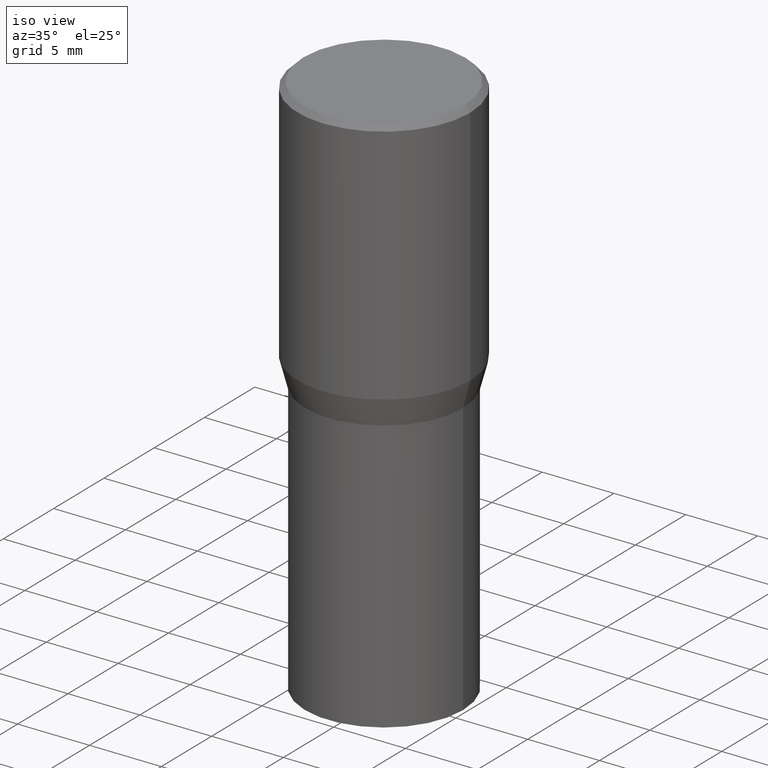
[diagram: clean part render]
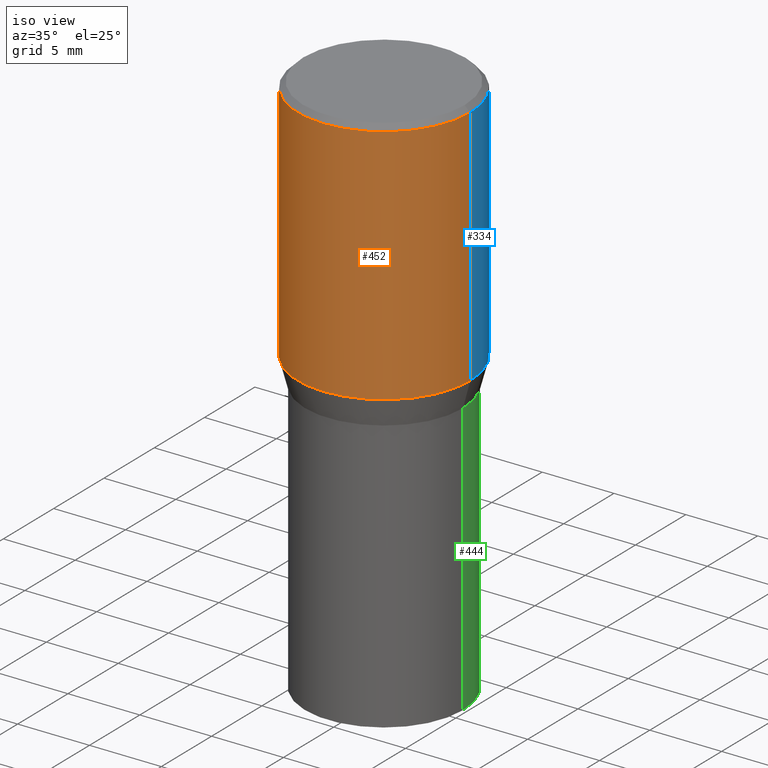
[diagram: same view with three faces highlighted in distinct colors, each labeled with its STEP entity id]
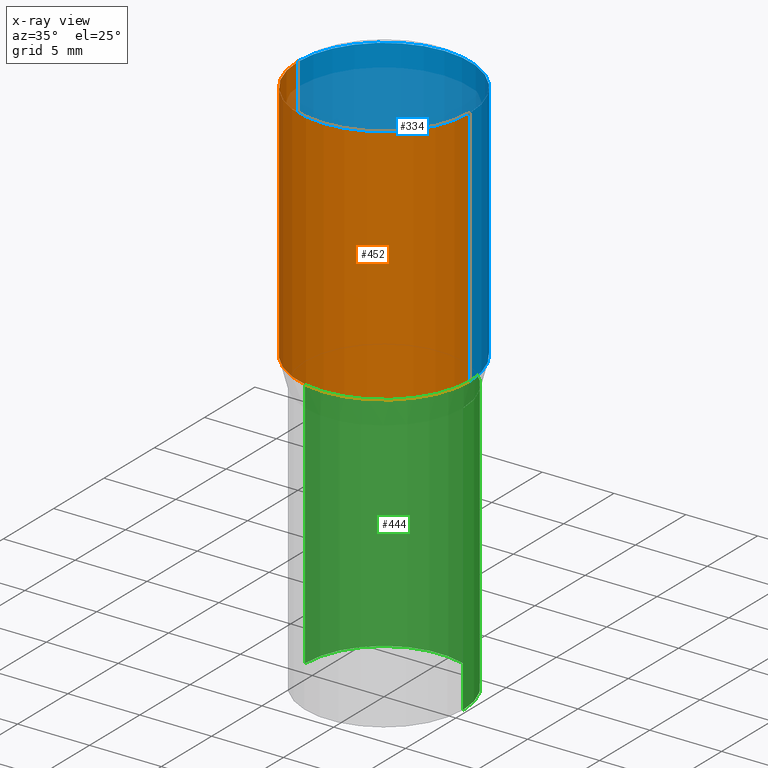
[diagram: x-ray of the same camera — body ghosted, the three highlighted faces saturated]
A machine part, iso view with three faces highlighted in distinct colors.
The next image is the same camera in x-ray (body ghosted, the three faces saturated) — at least one of them is partly hidden behind the body in this view.
Their STEP definitions:

[orange] entity #452 — the highlighted cylindrical surface (partial cylindrical patch) has radius 5.9995 mm, axis along (-0, 0, 1).
#31 = CARTESIAN_POINT ( 'NONE',  ( 1.659654580432621677E-29, -2.369546886817807077E-15, -0.6786652016312719748 ) ) ;
#37 = CARTESIAN_POINT ( 'NONE',  ( 0.2361999999999999933, -1.649375784469496131E-15, 1.151752954443000088E-29 ) ) ;
#40 = LINE ( 'NONE', #37, #412 ) ;
#52 = CARTESIAN_POINT ( 'NONE',  ( -0.2361999999999999933, 1.678301941865356591E-15, -1.161852468318208757E-29 ) ) ;
#78 = DIRECTION ( 'NONE',  ( 1.000000000000000000, -6.982962677686266711E-15, 0.000000000000000000 ) ) ;
#126 = VERTEX_POINT ( 'NONE', #207 ) ;
#128 = EDGE_CURVE ( 'NONE', #126, #438, #345, .T. ) ;
#147 = AXIS2_PLACEMENT_3D ( 'NONE', #31, #462, #78 ) ;
#157 = EDGE_CURVE ( 'NONE', #438, #333, #40, .T. ) ;
#169 = DIRECTION ( 'NONE',  ( -2.445468806185136597E-29, 3.491481338843145583E-15, 1.000000000000000000 ) ) ;
#191 = AXIS2_PLACEMENT_3D ( 'NONE', #368, #194, #330 ) ;
#194 = DIRECTION ( 'NONE',  ( -2.445468806185136597E-29, 3.491481338843145583E-15, 1.000000000000000000 ) ) ;
#207 = CARTESIAN_POINT ( 'NONE',  ( -0.2361999999999999933, -6.912449449524502887E-16, -0.6786652016312719748 ) ) ;
#221 = CIRCLE ( 'NONE', #302, 0.2361999999999999933 ) ;
#226 = CARTESIAN_POINT ( 'NONE',  ( -0.2361999999999999933, 4.673423884151294145E-16, -0.01499999999999999944 ) ) ;
#229 = CYLINDRICAL_SURFACE ( 'NONE', #191, 0.2361999999999999933 ) ;
#254 = EDGE_LOOP ( 'NONE', ( #331, #304, #453, #325 ) ) ;
#294 = VECTOR ( 'NONE', #398, 39.37007874015748143 ) ;
#298 = LINE ( 'NONE', #52, #294 ) ;
#302 = AXIS2_PLACEMENT_3D ( 'NONE', #449, #169, #370 ) ;
#304 = ORIENTED_EDGE ( 'NONE', *, *, #128, .T. ) ;
#325 = ORIENTED_EDGE ( 'NONE', *, *, #463, .F. ) ;
#330 = DIRECTION ( 'NONE',  ( 1.000000000000000000, -6.982962677686266711E-15, 4.876176775795936353E-29 ) ) ;
#331 = ORIENTED_EDGE ( 'NONE', *, *, #384, .F. ) ;
#333 = VERTEX_POINT ( 'NONE', #406 ) ;
#345 = CIRCLE ( 'NONE', #147, 0.2361999999999999933 ) ;
#368 = CARTESIAN_POINT ( 'NONE',  ( 0.000000000000000000, 0.000000000000000000, 0.000000000000000000 ) ) ;
#370 = DIRECTION ( 'NONE',  ( 1.000000000000000000, -6.982962677686266711E-15, 0.000000000000000000 ) ) ;
#384 = EDGE_CURVE ( 'NONE', #126, #403, #298, .T. ) ;
#398 = DIRECTION ( 'NONE',  ( -2.445468806185136877E-29, 3.491481338843145188E-15, 1.000000000000000000 ) ) ;
#402 = FACE_OUTER_BOUND ( 'NONE', #254, .T. ) ;
#403 = VERTEX_POINT ( 'NONE', #226 ) ;
#406 = CARTESIAN_POINT ( 'NONE',  ( 0.2361999999999999933, -1.701748004552143407E-15, -0.01499999999999999944 ) ) ;
#412 = VECTOR ( 'NONE', #426, 39.37007874015748143 ) ;
#426 = DIRECTION ( 'NONE',  ( -2.445468806185136877E-29, 3.491481338843145188E-15, 1.000000000000000000 ) ) ;
#438 = VERTEX_POINT ( 'NONE', #445 ) ;
#445 = CARTESIAN_POINT ( 'NONE',  ( 0.2361999999999999933, -4.018922671287303208E-15, -0.6786652016312719748 ) ) ;
#449 = CARTESIAN_POINT ( 'NONE',  ( 3.668203209277705088E-31, -5.237222008264718399E-17, -0.01499999999999999944 ) ) ;
#452 = ADVANCED_FACE ( 'NONE', ( #402 ), #229, .T. ) ;
#453 = ORIENTED_EDGE ( 'NONE', *, *, #157, .T. ) ;
#462 = DIRECTION ( 'NONE',  ( -2.445468806185136597E-29, 3.491481338843145583E-15, 1.000000000000000000 ) ) ;
#463 = EDGE_CURVE ( 'NONE', #403, #333, #221, .T. ) ;

[blue] entity #334 — the highlighted cylindrical surface (partial cylindrical patch) has radius 5.9995 mm, axis along (-0, 0, 1).
#3 = EDGE_CURVE ( 'NONE', #333, #403, #351, .T. ) ;
#19 = EDGE_LOOP ( 'NONE', ( #90, #93, #414, #277 ) ) ;
#37 = CARTESIAN_POINT ( 'NONE',  ( 0.2361999999999999933, -1.649375784469496131E-15, 1.151752954443000088E-29 ) ) ;
#40 = LINE ( 'NONE', #37, #412 ) ;
#52 = CARTESIAN_POINT ( 'NONE',  ( -0.2361999999999999933, 1.678301941865356591E-15, -1.161852468318208757E-29 ) ) ;
#64 = DIRECTION ( 'NONE',  ( 1.000000000000000000, -6.982962677686266711E-15, 0.000000000000000000 ) ) ;
#81 = CYLINDRICAL_SURFACE ( 'NONE', #91, 0.2361999999999999933 ) ;
#90 = ORIENTED_EDGE ( 'NONE', *, *, #216, .T. ) ;
#91 = AXIS2_PLACEMENT_3D ( 'NONE', #432, #155, #328 ) ;
#93 = ORIENTED_EDGE ( 'NONE', *, *, #384, .T. ) ;
#126 = VERTEX_POINT ( 'NONE', #207 ) ;
#155 = DIRECTION ( 'NONE',  ( -2.445468806185136597E-29, 3.491481338843145583E-15, 1.000000000000000000 ) ) ;
#157 = EDGE_CURVE ( 'NONE', #438, #333, #40, .T. ) ;
#170 = CARTESIAN_POINT ( 'NONE',  ( 3.668203209277705088E-31, -5.237222008264718399E-17, -0.01499999999999999944 ) ) ;
#179 = DIRECTION ( 'NONE',  ( 1.000000000000000000, -6.982962677686266711E-15, 0.000000000000000000 ) ) ;
#207 = CARTESIAN_POINT ( 'NONE',  ( -0.2361999999999999933, -6.912449449524502887E-16, -0.6786652016312719748 ) ) ;
#208 = AXIS2_PLACEMENT_3D ( 'NONE', #246, #214, #179 ) ;
#214 = DIRECTION ( 'NONE',  ( -2.445468806185136597E-29, 3.491481338843145583E-15, 1.000000000000000000 ) ) ;
#216 = EDGE_CURVE ( 'NONE', #438, #126, #308, .T. ) ;
#226 = CARTESIAN_POINT ( 'NONE',  ( -0.2361999999999999933, 4.673423884151294145E-16, -0.01499999999999999944 ) ) ;
#246 = CARTESIAN_POINT ( 'NONE',  ( 1.659654580432621677E-29, -2.369546886817807077E-15, -0.6786652016312719748 ) ) ;
#269 = DIRECTION ( 'NONE',  ( -2.445468806185136597E-29, 3.491481338843145583E-15, 1.000000000000000000 ) ) ;
#277 = ORIENTED_EDGE ( 'NONE', *, *, #157, .F. ) ;
#294 = VECTOR ( 'NONE', #398, 39.37007874015748143 ) ;
#298 = LINE ( 'NONE', #52, #294 ) ;
#308 = CIRCLE ( 'NONE', #208, 0.2361999999999999933 ) ;
#328 = DIRECTION ( 'NONE',  ( 1.000000000000000000, -6.982962677686266711E-15, 4.876176775795936353E-29 ) ) ;
#333 = VERTEX_POINT ( 'NONE', #406 ) ;
#334 = ADVANCED_FACE ( 'NONE', ( #363 ), #81, .T. ) ;
#351 = CIRCLE ( 'NONE', #457, 0.2361999999999999933 ) ;
#363 = FACE_OUTER_BOUND ( 'NONE', #19, .T. ) ;
#384 = EDGE_CURVE ( 'NONE', #126, #403, #298, .T. ) ;
#398 = DIRECTION ( 'NONE',  ( -2.445468806185136877E-29, 3.491481338843145188E-15, 1.000000000000000000 ) ) ;
#403 = VERTEX_POINT ( 'NONE', #226 ) ;
#406 = CARTESIAN_POINT ( 'NONE',  ( 0.2361999999999999933, -1.701748004552143407E-15, -0.01499999999999999944 ) ) ;
#412 = VECTOR ( 'NONE', #426, 39.37007874015748143 ) ;
#414 = ORIENTED_EDGE ( 'NONE', *, *, #3, .F. ) ;
#426 = DIRECTION ( 'NONE',  ( -2.445468806185136877E-29, 3.491481338843145188E-15, 1.000000000000000000 ) ) ;
#432 = CARTESIAN_POINT ( 'NONE',  ( 0.000000000000000000, 0.000000000000000000, 0.000000000000000000 ) ) ;
#438 = VERTEX_POINT ( 'NONE', #445 ) ;
#445 = CARTESIAN_POINT ( 'NONE',  ( 0.2361999999999999933, -4.018922671287303208E-15, -0.6786652016312719748 ) ) ;
#457 = AXIS2_PLACEMENT_3D ( 'NONE', #170, #269, #64 ) ;

[green] entity #444 — the highlighted cylindrical surface (partial cylindrical patch) has radius 5.5004 mm, axis along (-0, 0, 1).
#23 = VERTEX_POINT ( 'NONE', #409 ) ;
#33 = DIRECTION ( 'NONE',  ( -2.445468806185136597E-29, 3.491481338843145583E-15, 1.000000000000000000 ) ) ;
#53 = ORIENTED_EDGE ( 'NONE', *, *, #151, .T. ) ;
#74 = DIRECTION ( 'NONE',  ( 1.000000000000000000, -6.982962677686264344E-15, 0.000000000000000000 ) ) ;
#86 = EDGE_CURVE ( 'NONE', #100, #153, #133, .T. ) ;
#89 = AXIS2_PLACEMENT_3D ( 'NONE', #132, #378, #102 ) ;
#100 = VERTEX_POINT ( 'NONE', #310 ) ;
#102 = DIRECTION ( 'NONE',  ( 1.000000000000000000, -6.982962677686266711E-15, 0.000000000000000000 ) ) ;
#108 = CARTESIAN_POINT ( 'NONE',  ( -0.2165500000000000203, -2.392727693248884740E-15, -0.7520000000000001128 ) ) ;
#120 = FACE_OUTER_BOUND ( 'NONE', #257, .T. ) ;
#122 = CARTESIAN_POINT ( 'NONE',  ( 0.000000000000000000, 0.000000000000000000, 0.000000000000000000 ) ) ;
#124 = DIRECTION ( 'NONE',  ( -2.445468806185136597E-29, 3.491481338843145583E-15, 1.000000000000000000 ) ) ;
#132 = CARTESIAN_POINT ( 'NONE',  ( 1.838992542251222813E-29, -2.625593966810045497E-15, -0.7520000000000001128 ) ) ;
#133 = CIRCLE ( 'NONE', #89, 0.2165500000000000203 ) ;
#148 = CARTESIAN_POINT ( 'NONE',  ( 0.2165500000000000203, -6.749382576117678999E-15, -1.500000000000000222 ) ) ;
#151 = EDGE_CURVE ( 'NONE', #156, #23, #190, .T. ) ;
#153 = VERTEX_POINT ( 'NONE', #108 ) ;
#156 = VERTEX_POINT ( 'NONE', #148 ) ;
#167 = EDGE_CURVE ( 'NONE', #23, #153, #319, .T. ) ;
#173 = CARTESIAN_POINT ( 'NONE',  ( -0.2165500000000000203, 1.538680294288497096E-15, -1.065195393794699923E-29 ) ) ;
#190 = CIRCLE ( 'NONE', #404, 0.2165500000000000203 ) ;
#217 = DIRECTION ( 'NONE',  ( -2.445468806185136877E-29, 3.491481338843145188E-15, 1.000000000000000000 ) ) ;
#248 = VECTOR ( 'NONE', #217, 39.37007874015748143 ) ;
#257 = EDGE_LOOP ( 'NONE', ( #53, #329, #293, #261 ) ) ;
#260 = DIRECTION ( 'NONE',  ( 1.000000000000000000, -6.982962677686266711E-15, 4.876176775795935793E-29 ) ) ;
#261 = ORIENTED_EDGE ( 'NONE', *, *, #267, .F. ) ;
#263 = VECTOR ( 'NONE', #421, 39.37007874015748143 ) ;
#267 = EDGE_CURVE ( 'NONE', #156, #100, #280, .T. ) ;
#280 = LINE ( 'NONE', #393, #263 ) ;
#293 = ORIENTED_EDGE ( 'NONE', *, *, #86, .F. ) ;
#310 = CARTESIAN_POINT ( 'NONE',  ( 0.2165500000000000203, -4.137754534663007109E-15, -0.7520000000000001128 ) ) ;
#319 = LINE ( 'NONE', #173, #248 ) ;
#329 = ORIENTED_EDGE ( 'NONE', *, *, #167, .T. ) ;
#359 = AXIS2_PLACEMENT_3D ( 'NONE', #122, #124, #260 ) ;
#378 = DIRECTION ( 'NONE',  ( -2.445468806185136597E-29, 3.491481338843145583E-15, 1.000000000000000000 ) ) ;
#393 = CARTESIAN_POINT ( 'NONE',  ( 0.2165500000000000203, -1.512160567852961217E-15, 1.055936080798610036E-29 ) ) ;
#404 = AXIS2_PLACEMENT_3D ( 'NONE', #422, #33, #74 ) ;
#409 = CARTESIAN_POINT ( 'NONE',  ( -0.2165500000000000203, -2.392727693248884740E-15, -1.500000000000000222 ) ) ;
#421 = DIRECTION ( 'NONE',  ( -2.445468806185136877E-29, 3.491481338843145188E-15, 1.000000000000000000 ) ) ;
#422 = CARTESIAN_POINT ( 'NONE',  ( 3.668203209277704895E-29, -5.237222008264718177E-15, -1.500000000000000222 ) ) ;
#442 = CYLINDRICAL_SURFACE ( 'NONE', #359, 0.2165500000000000203 ) ;
#444 = ADVANCED_FACE ( 'NONE', ( #120 ), #442, .T. ) ;